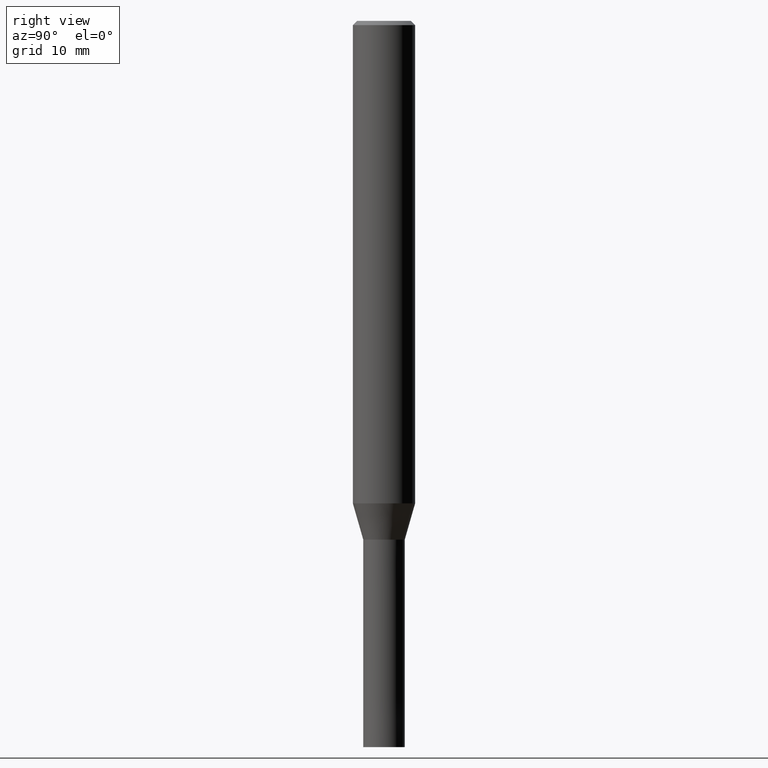
[diagram: clean part render]
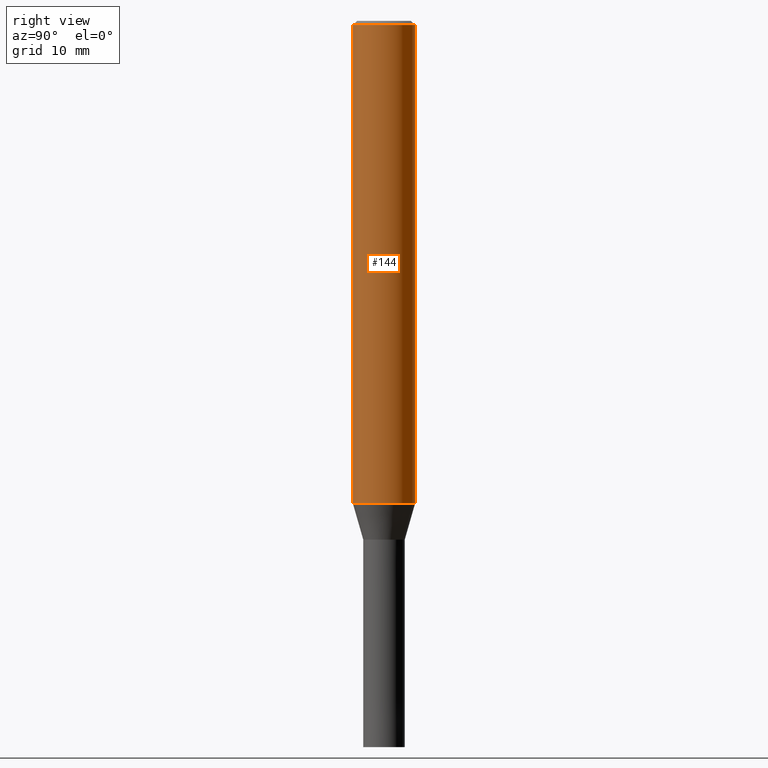
[diagram: same view with one face highlighted and labeled with its STEP entity id]
A machine part, right view. The second image highlights one B-rep face of the part: STEP entity #144.
In plain terms, the highlighted cylindrical surface (edge-blend (fillet) strip) has radius 3 mm, axis along (-0, -0, 1).
Its self-contained STEP definition (entity closure, byte-faithful):
#92=EDGE_CURVE('',#180,#148,#215,.T.);
#96=EDGE_CURVE('',#170,#180,#219,.T.);
#106=EDGE_CURVE('',#160,#148,#231,.T.);
#144=ADVANCED_FACE('',(#275),#276,.T.);
#146=EDGE_CURVE('',#160,#170,#278,.T.);
#148=VERTEX_POINT('',#280);
#160=VERTEX_POINT('',#293);
#170=VERTEX_POINT('',#303);
#180=VERTEX_POINT('',#313);
#215=LINE('',#346,#347);
#219=CIRCLE('',#352,3.0);
#231=CIRCLE('',#366,3.0);
#275=FACE_OUTER_BOUND('',#422,.T.);
#276=CYLINDRICAL_SURFACE('',#423,3.0);
#278=LINE('',#426,#427);
#280=CARTESIAN_POINT('',(3.67381906146713E-016,-3.0,-0.399999999999999));
#293=CARTESIAN_POINT('',(0.0,3.0,-0.399999999999999));
#303=CARTESIAN_POINT('',(0.0,3.0,-46.513));
#313=CARTESIAN_POINT('',(3.67381906146713E-016,-3.0,-46.513));
#346=CARTESIAN_POINT('',(3.67381906146713E-016,-3.0,-23.4565));
#347=VECTOR('',#494,1.0);
#352=AXIS2_PLACEMENT_3D('',#495,#496,#497);
#366=AXIS2_PLACEMENT_3D('',#515,#516,#517);
#422=EDGE_LOOP('',(#584,#585,#586,#587));
#423=AXIS2_PLACEMENT_3D('',#588,#589,#590);
#426=CARTESIAN_POINT('',(-3.67381906146713E-016,3.0,-23.4565));
#427=VECTOR('',#591,1.0);
#494=DIRECTION('',(-0.0,-0.0,1.0));
#495=CARTESIAN_POINT('',(0.0,0.0,-46.513));
#496=DIRECTION('',(0.0,0.0,-1.0));
#497=DIRECTION('',(0.0,1.0,0.0));
#515=CARTESIAN_POINT('',(0.0,0.0,-0.399999999999999));
#516=DIRECTION('',(0.0,0.0,-1.0));
#517=DIRECTION('',(0.0,1.0,0.0));
#584=ORIENTED_EDGE('',*,*,#146,.F.);
#585=ORIENTED_EDGE('',*,*,#106,.T.);
#586=ORIENTED_EDGE('',*,*,#92,.F.);
#587=ORIENTED_EDGE('',*,*,#96,.F.);
#588=CARTESIAN_POINT('',(0.0,0.0,-23.4565));
#589=DIRECTION('',(-0.0,-0.0,1.0));
#590=DIRECTION('',(0.0,1.0,0.0));
#591=DIRECTION('',(0.0,0.0,-1.0));